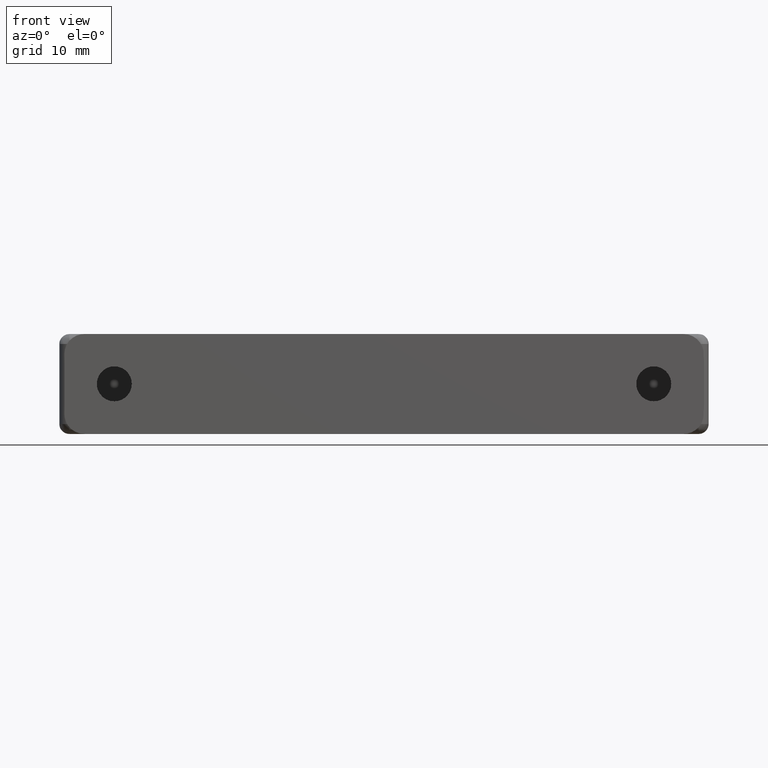
[diagram: clean part render]
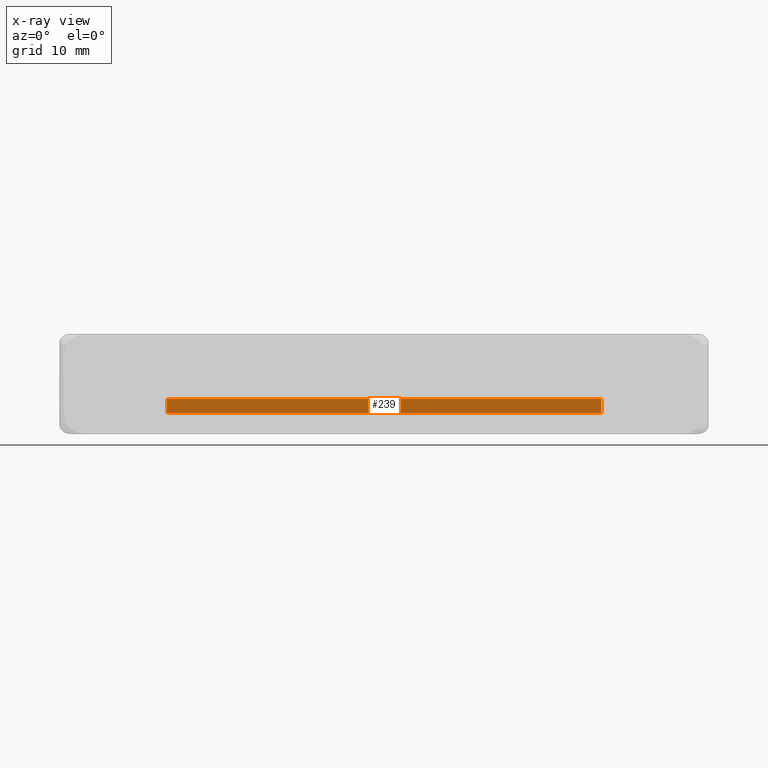
[diagram: x-ray — body ghosted, one internal face saturated and labeled with its STEP entity id]
A machine part, front view, then the same camera in x-ray: the body is ghosted and one INTERNAL B-rep face — a face not visible from any outside direction — is saturated and labeled: STEP entity #239.
In plain terms, the highlighted face is a freeform B-spline surface patch.
Its self-contained STEP definition (entity closure, byte-faithful):
#72=CARTESIAN_POINT('',(21.750004000000001,-3.0,2.899993999999960));
#73=VERTEX_POINT('',#72);
#79=CARTESIAN_POINT('',(-21.750007000000000,-3.0,2.899993999999960));
#80=VERTEX_POINT('',#79);
#81=CARTESIAN_POINT('',(21.750004000000001,-3.0,2.899993999999960));
#82=CARTESIAN_POINT('',(-21.750007000000000,-3.0,2.899993999999960));
#83=QUASI_UNIFORM_CURVE('',1,(#81,#82),.UNSPECIFIED.,.F.,.U.);
#84=EDGE_CURVE('',#73,#80,#83,.T.);
#136=CARTESIAN_POINT('',(-21.750007000000000,-3.0,1.499999999999946));
#137=VERTEX_POINT('',#136);
#143=CARTESIAN_POINT('',(21.750004000000001,-3.0,1.499999999999946));
#144=VERTEX_POINT('',#143);
#145=CARTESIAN_POINT('',(21.750004000000001,-3.0,1.499999999999946));
#146=CARTESIAN_POINT('',(-21.750007000000000,-3.0,1.499999999999946));
#147=QUASI_UNIFORM_CURVE('',1,(#145,#146),.UNSPECIFIED.,.F.,.U.);
#148=EDGE_CURVE('',#144,#137,#147,.T.);
#214=CARTESIAN_POINT('',(-21.750007000000000,-3.0,1.499999999999946));
#215=CARTESIAN_POINT('',(-21.750007000000000,-3.0,2.899993999999960));
#216=QUASI_UNIFORM_CURVE('',1,(#214,#215),.UNSPECIFIED.,.F.,.U.);
#217=EDGE_CURVE('',#137,#80,#216,.T.);
#224=CARTESIAN_POINT('',(-23.922833281832489,-3.0,1.430070307415167));
#225=CARTESIAN_POINT('',(-23.922833281832489,-3.0,2.969923630000130));
#226=CARTESIAN_POINT('',(23.922830670752901,-3.0,1.430070307415167));
#227=CARTESIAN_POINT('',(23.922830670752901,-3.0,2.969923630000130));
#228=B_SPLINE_SURFACE_WITH_KNOTS('',1,1,((#224,#226),(#225,#227)),.UNSPECIFIED.,.F.,.F.,.U.,(2,2),(2,2),(0.041708337925747,0.958291624821350),(0.0,47.845663952585397),.UNSPECIFIED.);
#229=ORIENTED_EDGE('',*,*,#84,.F.);
#230=CARTESIAN_POINT('',(21.750004000000001,-3.0,1.499999999999946));
#231=CARTESIAN_POINT('',(21.750004000000001,-3.0,2.899993999999960));
#232=QUASI_UNIFORM_CURVE('',1,(#230,#231),.UNSPECIFIED.,.F.,.U.);
#233=EDGE_CURVE('',#144,#73,#232,.T.);
#234=ORIENTED_EDGE('',*,*,#233,.F.);
#235=ORIENTED_EDGE('',*,*,#148,.T.);
#236=ORIENTED_EDGE('',*,*,#217,.T.);
#237=EDGE_LOOP('',(#229,#234,#235,#236));
#238=FACE_OUTER_BOUND('',#237,.T.);
#239=ADVANCED_FACE('',(#238),#228,.T.);